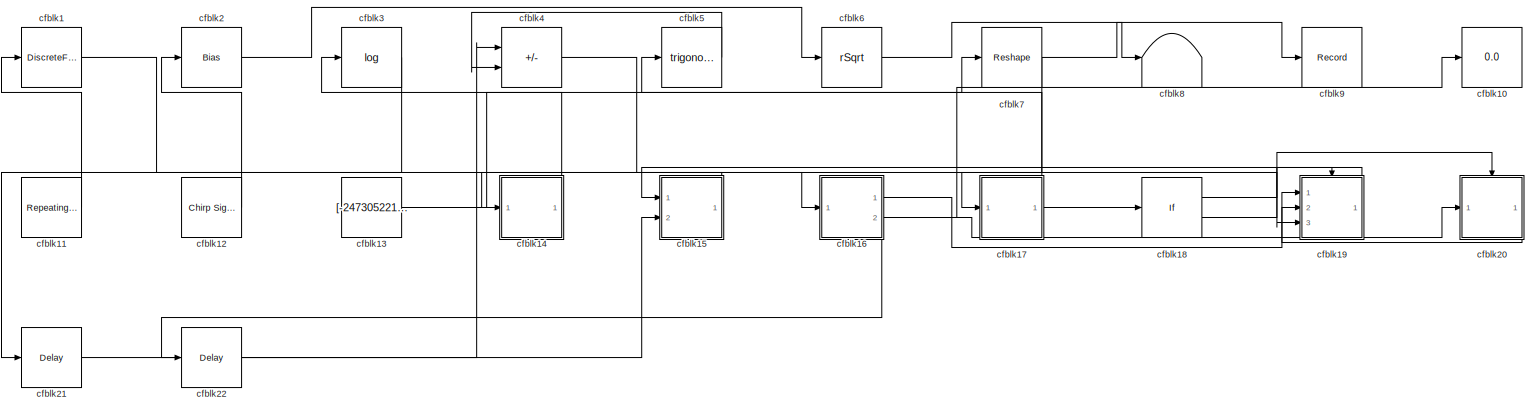
[diagram: root canvas - part 1/1, most of the canvas]
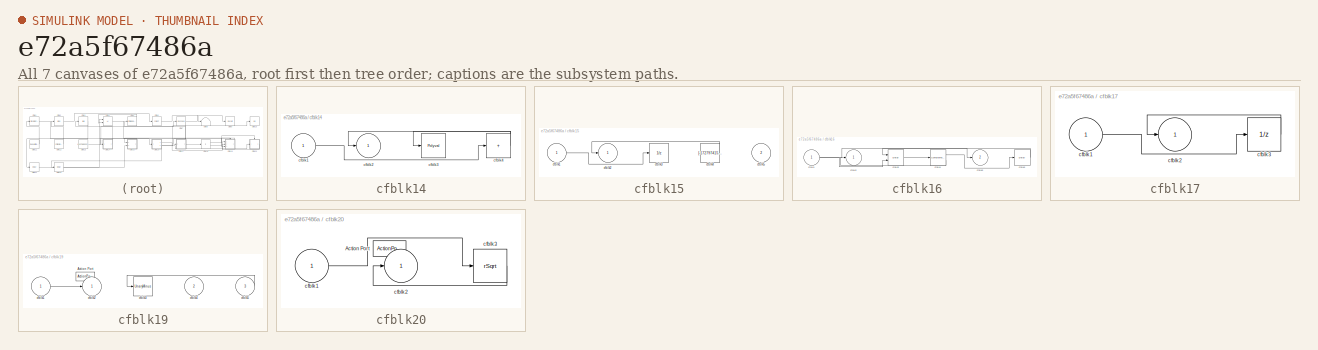
[diagram: thumbnail index - all 7 canvases of the model, root first then tree order]
MODEL slx_e72a5f67486a
KIND model
CONFIG AbsTol = auto
CONFIG EnableMultiTasking = off
CONFIG FixedStep = auto
CONFIG MaxStep = auto
CONFIG MinStep = auto
CONFIG RelTol = 1e-3
CONFIG SampleTimeConstraint = Unconstrained
CONFIG SolverName = VariableStepAuto
CONFIG StartTime = 0.0
CONFIG StopTime = 10.0
BLOCK [DiscreteFilter] cfblk1
  InputPortMap = u0
  Ports = [1, 1]
  SampleTime = 1
BLOCK [Display] cfblk10
  Decimation = 1
  Ports = [1]
BLOCK [Reference] cfblk11  REF=simulink/Sources/Repeating
Sequence
Stair
  Ports = [0, 1]
  SourceBlock = simulink/Sources/Repeating\nSequence\nStair
  SourceProductBaseCode = SL
  SourceType = Repeating Sequence Stair
BLOCK [Reference] cfblk12  REF=simulink/Sources/Chirp Signal
  Ports = [0, 1]
  SourceBlock = simulink/Sources/Chirp Signal
  SourceProductBaseCode = SL
  SourceType = chirp
BLOCK [Constant] cfblk13
  SampleTime = 1
  Value = [-247305221.422509]
BLOCK [SubSystem] cfblk14
  Ports = [1, 1]
  RequestExecContextInheritance = off
BLOCK [Inport] cfblk14/cfblk1
BLOCK [Outport] cfblk14/cfblk2
BLOCK [Polyval] cfblk14/cfblk3
  Coefs = [ +2.081618890e-019, -1.441693666e-014, +4.719686976e-010, -8.536869453e-006, +1.621573104e-001, -8.087801117e+001 ]
BLOCK [Sum] cfblk14/cfblk4
  IconShape = rectangular
  Inputs = +
  Ports = [1, 1]
BLOCK [SubSystem] cfblk15
  Ports = [2, 1]
  RequestExecContextInheritance = off
BLOCK [Inport] cfblk15/cfblk1
BLOCK [Outport] cfblk15/cfblk2
BLOCK [UnitDelay] cfblk15/cfblk3
  HasFrameUpgradeWarning = on
BLOCK [Constant] cfblk15/cfblk4
  SampleTime = 1
  Value = [-172797415.916094]
BLOCK [Inport] cfblk15/cfblk5
  Port = 2
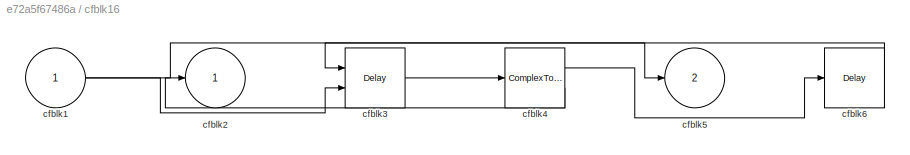
BLOCK [SubSystem] cfblk16
  Ports = [1, 2]
  RequestExecContextInheritance = off
BLOCK [Inport] cfblk16/cfblk1
BLOCK [Outport] cfblk16/cfblk2
BLOCK [Delay] cfblk16/cfblk3
  DelayLengthSource = Input port
  InputPortMap = u0,p1
  Ports = [2, 1]
  SampleTime = 1
BLOCK [ComplexToMagnitudeAngle] cfblk16/cfblk4
  Ports = [1, 2]
BLOCK [Outport] cfblk16/cfblk5
  Port = 2
BLOCK [Delay] cfblk16/cfblk6
  InputPortMap = u0
  Ports = [1, 1]
  SampleTime = 1
BLOCK [SubSystem] cfblk17
  Ports = [1, 1]
  RequestExecContextInheritance = off
BLOCK [Inport] cfblk17/cfblk1
BLOCK [Outport] cfblk17/cfblk2
BLOCK [UnitDelay] cfblk17/cfblk3
  HasFrameUpgradeWarning = on
BLOCK [If] cfblk18
  IfExpression = u1 >= 0
  Ports = [1, 2]
  SampleTime = 1
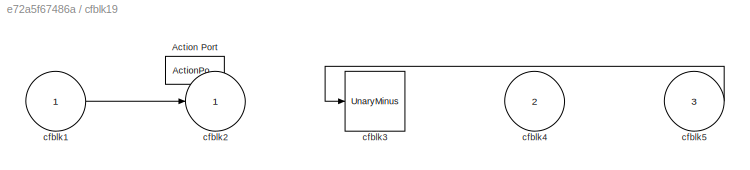
BLOCK [SubSystem] cfblk19
  Ports = [3, 1, 0, 0, 0, 0, 0, 1]
  RequestExecContextInheritance = off
  TreatAsAtomicUnit = on
BLOCK [ActionPort] cfblk19/Action Port
  ActionPortLabel = if(u1 >= 0)
BLOCK [Inport] cfblk19/cfblk1
BLOCK [Outport] cfblk19/cfblk2
BLOCK [UnaryMinus] cfblk19/cfblk3
BLOCK [Inport] cfblk19/cfblk4
  Port = 2
BLOCK [Inport] cfblk19/cfblk5
  Port = 3
BLOCK [Bias] cfblk2
  Bias = [727774502.056868]
  SaturateOnIntegerOverflow = off
BLOCK [SubSystem] cfblk20
  Ports = [1, 1, 0, 0, 0, 0, 0, 1]
  RequestExecContextInheritance = off
  TreatAsAtomicUnit = on
BLOCK [ActionPort] cfblk20/Action Port
  ActionPortLabel = else
BLOCK [Inport] cfblk20/cfblk1
BLOCK [Outport] cfblk20/cfblk2
BLOCK [Sqrt] cfblk20/cfblk3
  AlgorithmType = Newton-Raphson
  Operator = rSqrt
BLOCK [Delay] cfblk21
  InputPortMap = u0
  Ports = [1, 1]
  SampleTime = 1
BLOCK [Delay] cfblk22
  InputPortMap = u0
  Ports = [1, 1]
  SampleTime = 1
BLOCK [Math] cfblk3
  Operator = log
  Ports = [1, 1]
BLOCK [Sum] cfblk4
  IconShape = rectangular
  Inputs = -+
  Ports = [2, 1]
BLOCK [Trigonometry] cfblk5
  Ports = [1, 1]
BLOCK [Sqrt] cfblk6
  AlgorithmType = Newton-Raphson
  Operator = rSqrt
BLOCK [Reshape] cfblk7
  Ports = [1, 1]
BLOCK [Terminator] cfblk8
BLOCK [Record] cfblk9
  FileSettingsInternal = {"entries":[{"content":{"excelSettings":{"content":{},"type":"Streamout.ExcelSettings"}},"type":"Streamout.FileSettingStorage","uuid":"e5de7313-9b70-49f3-b795-696202b7e5ee"}],"packageUris":["http://schema.mathworks.com/mf0/streamout_blocks/R2020a"],"version":"1.0"}
  Ports = [1]
  SignalsInternal = {"entries":[{"content":{"signals":[{"content":{"blockPath":["sampleModel147/cfblk9"],"channel":[],"dimensions":[1],"domain":"sampleModel147/cfblk9","lineColor":"#0072bd","plots":[1],"port":1,"sid":[""],"signalID":5320,"signalName":"cfblk7"},"type":"RecordBlkView.Signal","uuid":"355f090d-3d63-44f9-9a60-b05337dbe9e4"}]},"type":"RecordBlkView.InputSignals","uuid":"92d60f7a-f4b0-42b1-b8d3-4c4b9f409310...<+94ch>
  VisualizationBindings = {"sparklinesplugin":{"info":[{"bindingParametersList":[],"subplotID":1}]}}
LINE cfblk11:1 -> cfblk1:1
LINE cfblk12:1 -> cfblk2:1
LINE cfblk13:1 -> cfblk7:1
LINE cfblk14/cfblk1:1 -> cfblk14/cfblk4:1
NET cfblk14/cfblk4:1 -> cfblk14/cfblk2:1, cfblk14/cfblk3:1
LINE cfblk14:1 -> cfblk3:1
LINE cfblk15/cfblk1:1 -> cfblk15/cfblk3:1
LINE cfblk15/cfblk4:1 -> cfblk15/cfblk2:1
LINE cfblk15:1 -> cfblk14:1
NET cfblk16/cfblk1:1 -> cfblk16/cfblk3:2, cfblk16/cfblk5:1
LINE cfblk16/cfblk3:1 -> cfblk16/cfblk4:1
LINE cfblk16/cfblk4:1 -> cfblk16/cfblk6:1
LINE cfblk16/cfblk4:2 -> cfblk16/cfblk2:1
LINE cfblk16/cfblk6:1 -> cfblk16/cfblk3:1
LINE cfblk16:1 -> cfblk19:1
NET cfblk16:2 -> cfblk10:1, cfblk20:1, cfblk22:1
LINE cfblk17/cfblk1:1 -> cfblk17/cfblk3:1
LINE cfblk17/cfblk3:1 -> cfblk17/cfblk2:1
NET cfblk17:1 -> cfblk18:1, cfblk5:1
LINE cfblk18:1 -> cfblk19:ifaction
LINE cfblk18:2 -> cfblk20:ifaction
LINE cfblk19/cfblk1:1 -> cfblk19/cfblk2:1
LINE cfblk19/cfblk5:1 -> cfblk19/cfblk3:1
LINE cfblk19:1 -> cfblk15:1
LINE cfblk1:1 -> cfblk19:3
LINE cfblk20/cfblk1:1 -> cfblk20/cfblk3:1
LINE cfblk20/cfblk3:1 -> cfblk20/cfblk2:1
LINE cfblk20:1 -> cfblk19:2
LINE cfblk21:1 -> cfblk15:2
LINE cfblk22:1 -> cfblk4:1
LINE cfblk2:1 -> cfblk6:1
LINE cfblk3:1 -> cfblk21:1
LINE cfblk4:1 -> cfblk16:1
LINE cfblk5:1 -> cfblk4:2
LINE cfblk6:1 -> cfblk8:1
NET cfblk7:1 -> cfblk17:1, cfblk9:1
note: NET lines group one-source signal fan-out (src -> all destinations, sorted); 1:1 wires keep LINE
